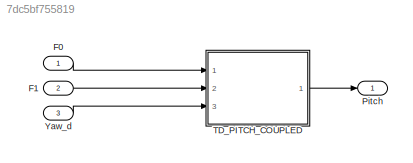
MODEL slx_7dc5bf755819
KIND model
CONFIG AbsTol = auto
CONFIG EnableMultiTasking = off
CONFIG FixedStep = auto
CONFIG MaxStep = auto
CONFIG MinStep = auto
CONFIG RelTol = 1e-3
CONFIG SampleTimeConstraint = Unconstrained
CONFIG Solver = VariableStepAuto
CONFIG SolverName = VariableStepAuto
CONFIG StartTime = 0.0
CONFIG StopTime = 10.0
BLOCK [Inport] F0
  IconDisplay = Port number
BLOCK [Inport] F1 
  IconDisplay = Port number
  Port = 2
BLOCK [Outport] Pitch
  IconDisplay = Port number
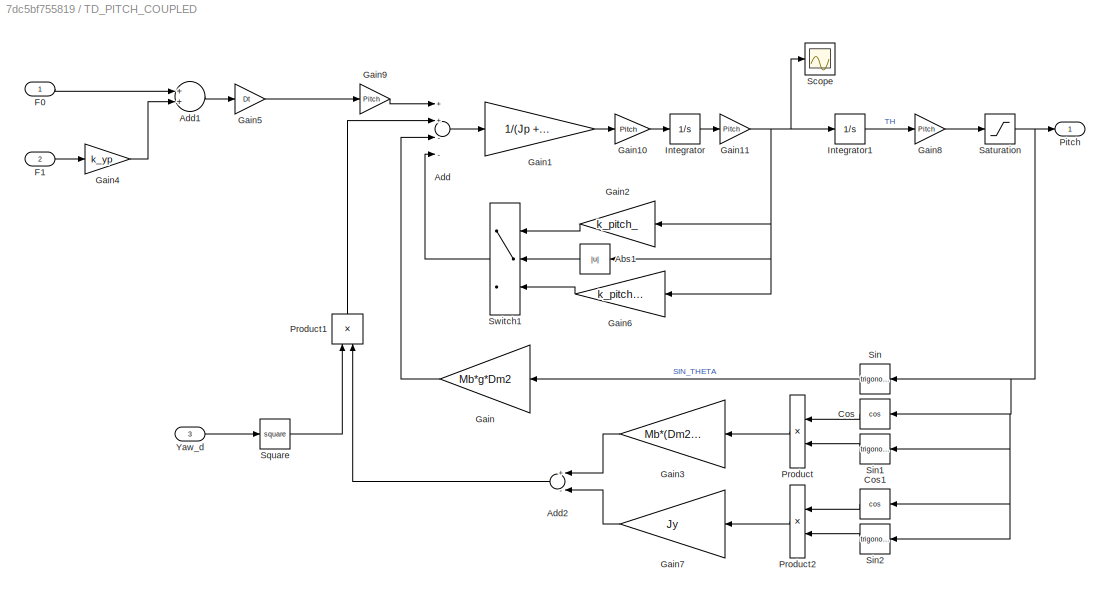
BLOCK [SubSystem] TD_PITCH_COUPLED
  Ports = [3, 1]
  RequestExecContextInheritance = off
BLOCK [Abs] TD_PITCH_COUPLED/Abs1
  SaturateOnIntegerOverflow = off
BLOCK [Sum] TD_PITCH_COUPLED/Add
  InputSameDT = off
  Inputs = ++--
  OutDataTypeStr = Inherit: Inherit via internal rule
  Ports = [4, 1]
  SaturateOnIntegerOverflow = off
BLOCK [Sum] TD_PITCH_COUPLED/Add1
  InputSameDT = off
  OutDataTypeStr = Inherit: Inherit via internal rule
  Ports = [2, 1]
  SaturateOnIntegerOverflow = off
BLOCK [Sum] TD_PITCH_COUPLED/Add2
  InputSameDT = off
  Inputs = +-
  OutDataTypeStr = Inherit: Inherit via internal rule
  Ports = [2, 1]
  SaturateOnIntegerOverflow = off
BLOCK [Trigonometry] TD_PITCH_COUPLED/Cos
  Operator = cos
  Ports = [1, 1]
BLOCK [Trigonometry] TD_PITCH_COUPLED/Cos1
  Operator = cos
  Ports = [1, 1]
BLOCK [Inport] TD_PITCH_COUPLED/F0
  IconDisplay = Port number
BLOCK [Inport] TD_PITCH_COUPLED/F1 
  IconDisplay = Port number
  Port = 2
BLOCK [Gain] TD_PITCH_COUPLED/Gain
  Gain = Mb*g*Dm2
  OutDataTypeStr = Inherit: Inherit via internal rule
  ParamDataTypeStr = Inherit: Inherit via internal rule
  SaturateOnIntegerOverflow = off
BLOCK [Gain] TD_PITCH_COUPLED/Gain1
  Gain = 1/(Jp + Mb*(Dm2)^2)
  OutDataTypeStr = Inherit: Inherit via internal rule
  ParamDataTypeStr = Inherit: Inherit via internal rule
  SaturateOnIntegerOverflow = off
BLOCK [Gain] TD_PITCH_COUPLED/Gain10
  Gain = Pitch
  OutDataTypeStr = Inherit: Inherit via internal rule
  ParamDataTypeStr = Inherit: Inherit via internal rule
  SaturateOnIntegerOverflow = off
BLOCK [Gain] TD_PITCH_COUPLED/Gain11
  Gain = Pitch
  OutDataTypeStr = Inherit: Inherit via internal rule
  ParamDataTypeStr = Inherit: Inherit via internal rule
  SaturateOnIntegerOverflow = off
BLOCK [Gain] TD_PITCH_COUPLED/Gain2
  Gain = k_pitch_
  OutDataTypeStr = Inherit: Inherit via internal rule
  ParamDataTypeStr = Inherit: Inherit via internal rule
  SaturateOnIntegerOverflow = off
BLOCK [Gain] TD_PITCH_COUPLED/Gain3
  Gain = Mb*(Dm2)^2
  OutDataTypeStr = Inherit: Inherit via internal rule
  ParamDataTypeStr = Inherit: Inherit via internal rule
  SaturateOnIntegerOverflow = off
BLOCK [Gain] TD_PITCH_COUPLED/Gain4
  Gain = k_yp
  OutDataTypeStr = Inherit: Inherit via internal rule
  ParamDataTypeStr = Inherit: Inherit via internal rule
  SaturateOnIntegerOverflow = off
BLOCK [Gain] TD_PITCH_COUPLED/Gain5
  Gain = Dt
  OutDataTypeStr = Inherit: Inherit via internal rule
  ParamDataTypeStr = Inherit: Inherit via internal rule
  SaturateOnIntegerOverflow = off
BLOCK [Gain] TD_PITCH_COUPLED/Gain6
  Gain = k_pitch_*5
  OutDataTypeStr = Inherit: Inherit via internal rule
  ParamDataTypeStr = Inherit: Inherit via internal rule
  SaturateOnIntegerOverflow = off
BLOCK [Gain] TD_PITCH_COUPLED/Gain7
  Gain = Jy
  OutDataTypeStr = Inherit: Inherit via internal rule
  ParamDataTypeStr = Inherit: Inherit via internal rule
  SaturateOnIntegerOverflow = off
BLOCK [Gain] TD_PITCH_COUPLED/Gain8
  Gain = Pitch
  OutDataTypeStr = Inherit: Inherit via internal rule
  ParamDataTypeStr = Inherit: Inherit via internal rule
  SaturateOnIntegerOverflow = off
BLOCK [Gain] TD_PITCH_COUPLED/Gain9
  Gain = Pitch
  OutDataTypeStr = Inherit: Inherit via internal rule
  ParamDataTypeStr = Inherit: Inherit via internal rule
  SaturateOnIntegerOverflow = off
BLOCK [Integrator] TD_PITCH_COUPLED/Integrator
  Ports = [1, 1]
BLOCK [Integrator] TD_PITCH_COUPLED/Integrator1
  Ports = [1, 1]
BLOCK [Outport] TD_PITCH_COUPLED/Pitch
  IconDisplay = Port number
BLOCK [Product] TD_PITCH_COUPLED/Product
  InputSameDT = off
  OutDataTypeStr = Inherit: Inherit via internal rule
  Ports = [2, 1]
  RndMeth = Floor
  SaturateOnIntegerOverflow = off
BLOCK [Product] TD_PITCH_COUPLED/Product1
  InputSameDT = off
  OutDataTypeStr = Inherit: Inherit via internal rule
  Ports = [2, 1]
  RndMeth = Floor
  SaturateOnIntegerOverflow = off
BLOCK [Product] TD_PITCH_COUPLED/Product2
  InputSameDT = off
  OutDataTypeStr = Inherit: Inherit via internal rule
  Ports = [2, 1]
  RndMeth = Floor
  SaturateOnIntegerOverflow = off
BLOCK [Saturate] TD_PITCH_COUPLED/Saturation
  InputPortMap = u0
  LinearizeAsGain = off
  LowerLimit = -0.93
  Ports = [1, 1]
  UpperLimit = 0.93
BLOCK [Scope] TD_PITCH_COUPLED/Scope
  Floating = off
  NumInputPorts = 1
  Ports = [1]
  ScopeSpecificationString = Simulink.scopes.TimeScopeBlockCfg('CurrentConfiguration', extmgr.ConfigurationSet(extmgr.Configuration('Core','General UI',true),extmgr.Configuration('Core','Source UI',true),extmgr.Configuration('Sources','WiredSimulink',true,'DataLoggingVariableName','ScopeData1'),extmgr.Configuration('Visuals','Time Domain',true,'SerializedDisplays',{struct('MinYLimReal','-1.00000','MaxYLimReal','1.00000','YLab...<+1365ch>
BLOCK [Trigonometry] TD_PITCH_COUPLED/Sin
  Ports = [1, 1]
BLOCK [Trigonometry] TD_PITCH_COUPLED/Sin1
  Ports = [1, 1]
BLOCK [Trigonometry] TD_PITCH_COUPLED/Sin2
  Ports = [1, 1]
BLOCK [Math] TD_PITCH_COUPLED/Square
  Operator = square
  Ports = [1, 1]
  SignedPower = off
BLOCK [Switch] TD_PITCH_COUPLED/Switch1
  Criteria = u2 > Threshold
  InputSameDT = off
  RndMeth = Simplest
  SaturateOnIntegerOverflow = off
  Threshold = 0.15
BLOCK [Inport] TD_PITCH_COUPLED/Yaw_d
  IconDisplay = Port number
  Port = 3
BLOCK [Inport] Yaw_d
  IconDisplay = Port number
  Port = 3
LINE F0:1 -> TD_PITCH_COUPLED:1
LINE F1 :1 -> TD_PITCH_COUPLED:2
LINE TD_PITCH_COUPLED/Abs1:1 -> TD_PITCH_COUPLED/Switch1:2
LINE TD_PITCH_COUPLED/Add1:1 -> TD_PITCH_COUPLED/Gain5:1
LINE TD_PITCH_COUPLED/Add2:1 -> TD_PITCH_COUPLED/Product1:2
LINE TD_PITCH_COUPLED/Add:1 -> TD_PITCH_COUPLED/Gain1:1
LINE TD_PITCH_COUPLED/Cos1:1 -> TD_PITCH_COUPLED/Product2:1
LINE TD_PITCH_COUPLED/Cos:1 -> TD_PITCH_COUPLED/Product:1
LINE TD_PITCH_COUPLED/F0:1 -> TD_PITCH_COUPLED/Add1:1
LINE TD_PITCH_COUPLED/F1 :1 -> TD_PITCH_COUPLED/Gain4:1
LINE TD_PITCH_COUPLED/Gain10:1 -> TD_PITCH_COUPLED/Integrator:1
NET TD_PITCH_COUPLED/Gain11:1 -> TD_PITCH_COUPLED/Abs1:1, TD_PITCH_COUPLED/Gain2:1, TD_PITCH_COUPLED/Gain6:1, TD_PITCH_COUPLED/Integrator1:1, TD_PITCH_COUPLED/Scope:1
LINE TD_PITCH_COUPLED/Gain1:1 -> TD_PITCH_COUPLED/Gain10:1
LINE TD_PITCH_COUPLED/Gain2:1 -> TD_PITCH_COUPLED/Switch1:1
LINE TD_PITCH_COUPLED/Gain3:1 -> TD_PITCH_COUPLED/Add2:1
LINE TD_PITCH_COUPLED/Gain4:1 -> TD_PITCH_COUPLED/Add1:2
LINE TD_PITCH_COUPLED/Gain5:1 -> TD_PITCH_COUPLED/Gain9:1
LINE TD_PITCH_COUPLED/Gain6:1 -> TD_PITCH_COUPLED/Switch1:3
LINE TD_PITCH_COUPLED/Gain7:1 -> TD_PITCH_COUPLED/Add2:2
LINE TD_PITCH_COUPLED/Gain8:1 -> TD_PITCH_COUPLED/Saturation:1
LINE TD_PITCH_COUPLED/Gain9:1 -> TD_PITCH_COUPLED/Add:1
LINE TD_PITCH_COUPLED/Gain:1 -> TD_PITCH_COUPLED/Add:3
LINE TD_PITCH_COUPLED/Integrator1:1 -> TD_PITCH_COUPLED/Gain8:1
LINE TD_PITCH_COUPLED/Integrator:1 -> TD_PITCH_COUPLED/Gain11:1
LINE TD_PITCH_COUPLED/Product1:1 -> TD_PITCH_COUPLED/Add:2
LINE TD_PITCH_COUPLED/Product2:1 -> TD_PITCH_COUPLED/Gain7:1
LINE TD_PITCH_COUPLED/Product:1 -> TD_PITCH_COUPLED/Gain3:1
NET TD_PITCH_COUPLED/Saturation:1 -> TD_PITCH_COUPLED/Cos1:1, TD_PITCH_COUPLED/Cos:1, TD_PITCH_COUPLED/Pitch:1, TD_PITCH_COUPLED/Sin1:1, TD_PITCH_COUPLED/Sin2:1, TD_PITCH_COUPLED/Sin:1
LINE TD_PITCH_COUPLED/Sin1:1 -> TD_PITCH_COUPLED/Product:2
LINE TD_PITCH_COUPLED/Sin2:1 -> TD_PITCH_COUPLED/Product2:2
LINE TD_PITCH_COUPLED/Sin:1 -> TD_PITCH_COUPLED/Gain:1
LINE TD_PITCH_COUPLED/Square:1 -> TD_PITCH_COUPLED/Product1:1
LINE TD_PITCH_COUPLED/Switch1:1 -> TD_PITCH_COUPLED/Add:4
LINE TD_PITCH_COUPLED/Yaw_d:1 -> TD_PITCH_COUPLED/Square:1
LINE TD_PITCH_COUPLED:1 -> Pitch:1
LINE Yaw_d:1 -> TD_PITCH_COUPLED:3
note: NET lines group one-source signal fan-out (src -> all destinations, sorted); 1:1 wires keep LINE
